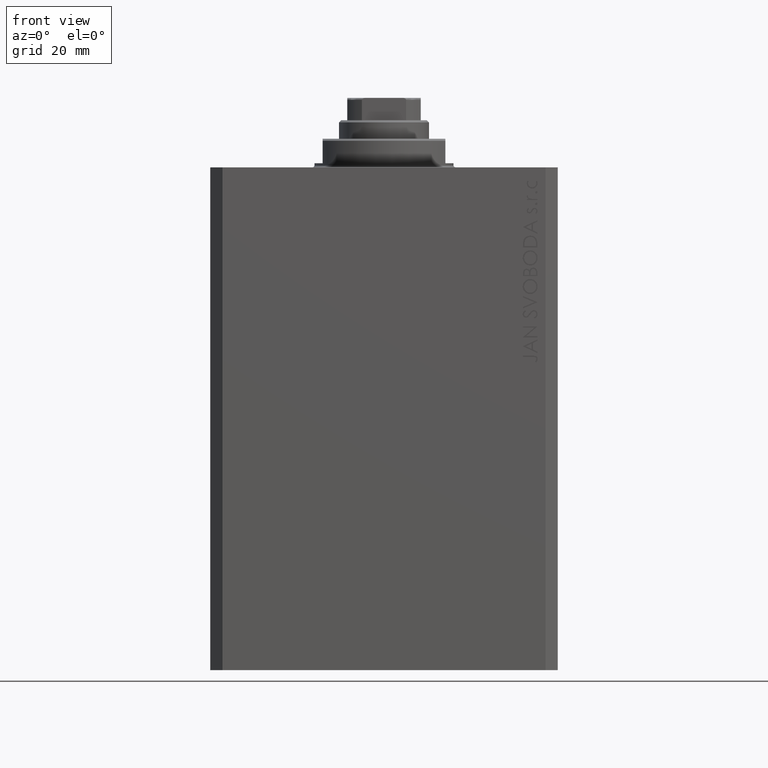
[diagram: clean part render]
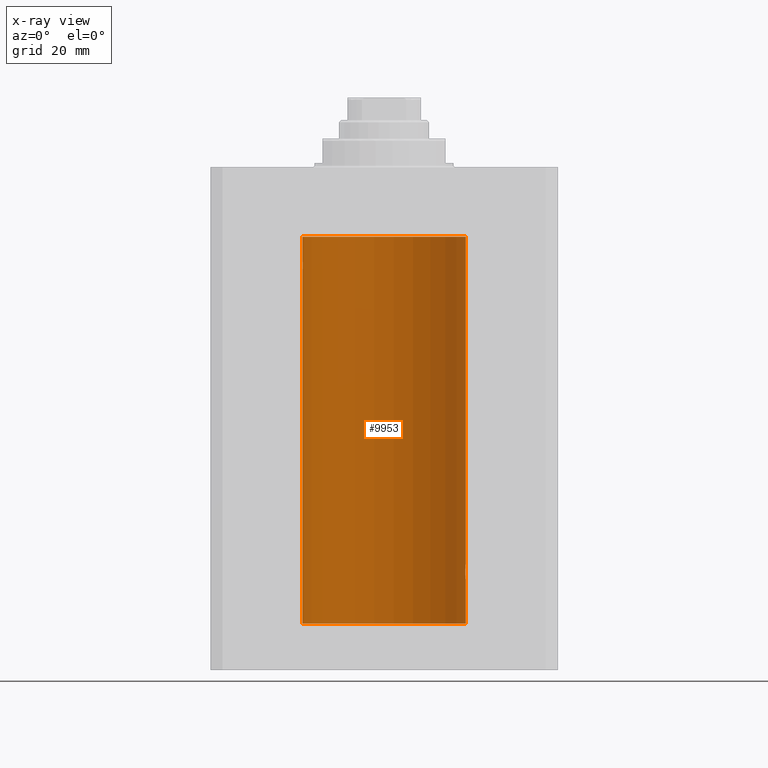
[diagram: x-ray — body ghosted, one internal face saturated and labeled with its STEP entity id]
A machine part, front view, then the same camera in x-ray: the body is ghosted and one INTERNAL B-rep face — a face not visible from any outside direction — is saturated and labeled: STEP entity #9953.
In plain terms, the highlighted cylindrical surface (partial cylindrical patch) has radius 20 mm, axis along (0, 0, 1).
Its self-contained STEP definition (entity closure, byte-faithful):
#113 = CARTESIAN_POINT ( 'NONE',  ( -19.99868965376115071, 0.2622407139811102628, -22.01298505384673732 ) ) ;
#612 = VERTEX_POINT ( 'NONE', #23503 ) ;
#788 = EDGE_CURVE ( 'NONE', #33542, #24362, #6632, .T. ) ;
#823 = B_SPLINE_CURVE_WITH_KNOTS ( 'NONE', 3,
 ( #7515, #39989, #113, #4585, #14695, #22090, #43813, #11104, #22968, #1003, #15564, #37531, #4820, #44914, #12228, #16738, #35128, #2419, #13403, #12690, #27973, #27488, #24376, #27247, #42048, #38466, #24615, #31075, #21045, #35366 ),
 .UNSPECIFIED., .F., .F.,
 ( 4, 2, 2, 2, 2, 2, 2, 2, 2, 2, 2, 2, 2, 2, 4 ),
 ( 1.233811249882840126E-19, 0.0003910512220831129202, 0.0007821024441662257319, 0.001173153666249338381, 0.001564204888332450813, 0.002346307332498675461, 0.003128409776664900326, 0.003519460998748018179, 0.003910512220831135165, 0.004301563442914253452, 0.004692614664997370871, 0.005083665887080488291, 0.005474717109163606578, 0.005865768331246723997, 0.006256819553329842284 ),
 .UNSPECIFIED. ) ;
#1003 = CARTESIAN_POINT ( 'NONE',  ( -19.93684595445884611, 1.598854313793185655, -22.77049887769366521 ) ) ;
#1052 = CARTESIAN_POINT ( 'NONE',  ( 20.00000000000000000, 0.000000000000000000, -111.5999999999999943 ) ) ;
#1324 = CARTESIAN_POINT ( 'NONE',  ( 19.98998987637478209, 0.6441982143731844745, -97.10205654639885609 ) ) ;
#1674 = DIRECTION ( 'NONE',  ( 1.000000000000000000, 0.000000000000000000, 0.000000000000000000 ) ) ;
#1685 = CIRCLE ( 'NONE', #7782, 20.00000000000000000 ) ;
#1742 = CARTESIAN_POINT ( 'NONE',  ( 19.92371056170336274, 1.748080295468898537, -100.0060386593725070 ) ) ;
#1793 = CARTESIAN_POINT ( 'NONE',  ( 20.00000000000000000, 0.1305404422160218736, -96.99999999999998579 ) ) ;
#2029 = CARTESIAN_POINT ( 'NONE',  ( 19.95655800881796083, 1.320814917468111194, -97.49239309359698780 ) ) ;
#2419 = CARTESIAN_POINT ( 'NONE',  ( -19.91909332229799290, 1.797847595792767317, -24.88596189455837759 ) ) ;
#3048 = VECTOR ( 'NONE', #46145, 1000.000000000000000 ) ;
#3799 = LINE ( 'NONE', #36976, #21428 ) ;
#4341 = AXIS2_PLACEMENT_3D ( 'NONE', #37959, #19821, #1674 ) ;
#4585 = CARTESIAN_POINT ( 'NONE',  ( -19.99370013622814568, 0.5179893069484621249, -22.06384771616670903 ) ) ;
#4820 = CARTESIAN_POINT ( 'NONE',  ( -19.89975827978156175, 1.999905101582726719, -23.73819846102561115 ) ) ;
#4869 = DIRECTION ( 'NONE',  ( -0.000000000000000000, -0.000000000000000000, 1.000000000000000000 ) ) ;
#5114 = EDGE_LOOP ( 'NONE', ( #46737, #5212, #32744, #12389, #34268, #45523, #47040, #22211, #41936 ) ) ;
#5201 = EDGE_CURVE ( 'NONE', #6409, #33542, #5326, .T. ) ;
#5212 = ORIENTED_EDGE ( 'NONE', *, *, #14396, .F. ) ;
#5326 = LINE ( 'NONE', #1052, #7532 ) ;
#6409 = VERTEX_POINT ( 'NONE', #43210 ) ;
#6632 = CIRCLE ( 'NONE', #4341, 20.00000000000000000 ) ;
#7472 = EDGE_CURVE ( 'NONE', #8645, #612, #32541, .T. ) ;
#7515 = CARTESIAN_POINT ( 'NONE',  ( -20.00000000000000000, -1.269718202421245235E-16, -22.00000000000000000 ) ) ;
#7532 = VECTOR ( 'NONE', #4869, 1000.000000000000000 ) ;
#7725 = DIRECTION ( 'NONE',  ( 1.000000000000000000, 0.000000000000000000, 0.000000000000000000 ) ) ;
#7782 = AXIS2_PLACEMENT_3D ( 'NONE', #39726, #14895, #7725 ) ;
#7870 = B_SPLINE_CURVE_WITH_KNOTS ( 'NONE', 3,
 ( #12504, #34464, #38270, #23241, #15836, #30410, #44957, #8902, #26829, #27057, #1742, #12273, #27288, #16317 ),
 .UNSPECIFIED., .F., .F.,
 ( 4, 2, 2, 2, 2, 2, 4 ),
 ( 1.911692756536875168E-18, 0.0003911418372936038769, 0.0007822836745872059107, 0.001173425511880807782, 0.001564567349174409870, 0.002346851023761584772, 0.003129134698348759892 ),
 .UNSPECIFIED. ) ;
#8645 = VERTEX_POINT ( 'NONE', #36787 ) ;
#8902 = CARTESIAN_POINT ( 'NONE',  ( 19.96307037068151757, 1.219701915132744841, -100.5904134935036751 ) ) ;
#9428 = CARTESIAN_POINT ( 'NONE',  ( 19.94332236886613074, 1.507531922383789524, -97.67909949904074551 ) ) ;
#9953 = ADVANCED_FACE ( 'NONE', ( #46196 ), #35458, .F. ) ;
#10564 = CARTESIAN_POINT ( 'NONE',  ( 20.00000000000000000, 0.000000000000000000, -111.5999999999999943 ) ) ;
#11104 = CARTESIAN_POINT ( 'NONE',  ( -19.96308513509966787, 1.219458756546270672, -22.40940266542446935 ) ) ;
#11199 = DIRECTION ( 'NONE',  ( -0.000000000000000000, -0.000000000000000000, 1.000000000000000000 ) ) ;
#11615 = CARTESIAN_POINT ( 'NONE',  ( 19.91911433329477177, 1.797615436563606561, -98.11357106075776358 ) ) ;
#12070 = DIRECTION ( 'NONE',  ( -0.000000000000000000, -0.000000000000000000, 1.000000000000000000 ) ) ;
#12228 = CARTESIAN_POINT ( 'NONE',  ( -19.90106552791689154, 1.987020435121076734, -24.26241417820002155 ) ) ;
#12273 = CARTESIAN_POINT ( 'NONE',  ( 19.90520750556430229, 1.947496194184494378, -99.52455416993456083 ) ) ;
#12389 = ORIENTED_EDGE ( 'NONE', *, *, #38140, .T. ) ;
#12504 = CARTESIAN_POINT ( 'NONE',  ( 20.00000000000000000, 1.967327733996653312E-15, -101.0000000000000000 ) ) ;
#12690 = CARTESIAN_POINT ( 'NONE',  ( -19.93679350243183990, 1.590453176650918676, -25.21960275349743696 ) ) ;
#13018 = CARTESIAN_POINT ( 'NONE',  ( 19.97511131722831479, 1.003336743019912936, -97.26498565174388489 ) ) ;
#13227 = CARTESIAN_POINT ( 'NONE',  ( 19.89974874213236333, 2.000000000000336620, -99.00000000000000000 ) ) ;
#13403 = CARTESIAN_POINT ( 'NONE',  ( -19.92471474456649716, 1.735228749583835439, -25.00297226784954674 ) ) ;
#14218 = EDGE_CURVE ( 'NONE', #32958, #24362, #19702, .T. ) ;
#14396 = EDGE_CURVE ( 'NONE', #8645, #31336, #1685, .T. ) ;
#14695 = CARTESIAN_POINT ( 'NONE',  ( -19.98996196681220638, 0.6450624715427617506, -22.10234886833925572 ) ) ;
#14895 = DIRECTION ( 'NONE',  ( 0.000000000000000000, 0.000000000000000000, 1.000000000000000000 ) ) ;
#15180 = CARTESIAN_POINT ( 'NONE',  ( 19.90980722176544049, 1.897923463361389285, -98.35574535366806970 ) ) ;
#15564 = CARTESIAN_POINT ( 'NONE',  ( -19.92373272380676497, 1.747830109444745927, -22.99354240926169624 ) ) ;
#15836 = CARTESIAN_POINT ( 'NONE',  ( 19.98995738555794688, 0.6452086089795042723, -100.8976034536016044 ) ) ;
#16317 = CARTESIAN_POINT ( 'NONE',  ( 19.89974874213236333, 2.000000000000336620, -99.00000000000000000 ) ) ;
#16738 = CARTESIAN_POINT ( 'NONE',  ( -19.90610216711450420, 1.935912154109700190, -24.51899474186111050 ) ) ;
#16839 = CARTESIAN_POINT ( 'NONE',  ( 19.98071536551674754, 0.8863972468204365240, -97.20236805399481739 ) ) ;
#17170 = AXIS2_PLACEMENT_3D ( 'NONE', #30944, #38093, #31174 ) ;
#18767 = CARTESIAN_POINT ( 'NONE',  ( 19.90611763847108762, 1.935753518394741635, -98.48042243434849752 ) ) ;
#19481 = CARTESIAN_POINT ( 'NONE',  ( 19.89974874213236689, 2.000000000000336620, -98.86948983741758923 ) ) ;
#19702 = LINE ( 'NONE', #37382, #40534 ) ;
#19821 = DIRECTION ( 'NONE',  ( 0.000000000000000000, 0.000000000000000000, 1.000000000000000000 ) ) ;
#20182 = CARTESIAN_POINT ( 'NONE',  ( 20.00000000000000000, -1.553109350199128042E-23, -97.00000000000000000 ) ) ;
#20634 = CARTESIAN_POINT ( 'NONE',  ( 20.00000000000000000, 0.000000000000000000, -17.00000000000000000 ) ) ;
#21045 = CARTESIAN_POINT ( 'NONE',  ( -19.99999999999999645, 0.1305706983324449733, -25.99999999999998934 ) ) ;
#21428 = VECTOR ( 'NONE', #11199, 1000.000000000000000 ) ;
#21540 = EDGE_CURVE ( 'NONE', #31336, #23410, #3799, .T. ) ;
#22090 = CARTESIAN_POINT ( 'NONE',  ( -19.98067755938510714, 0.8872481584516758168, -22.20278656943303375 ) ) ;
#22211 = ORIENTED_EDGE ( 'NONE', *, *, #14218, .F. ) ;
#22729 = CARTESIAN_POINT ( 'NONE',  ( -20.00000000000000000, -1.269718202421245235E-16, -22.00000000000000000 ) ) ;
#22968 = CARTESIAN_POINT ( 'NONE',  ( -19.95645382900617903, 1.322305185229311064, -22.49384229619286657 ) ) ;
#23241 = CARTESIAN_POINT ( 'NONE',  ( 19.99369727434158506, 0.5181068333511539281, -100.9361228828299630 ) ) ;
#23410 = VERTEX_POINT ( 'NONE', #42944 ) ;
#23503 = CARTESIAN_POINT ( 'NONE',  ( 20.00000000000000000, 1.967327733996653312E-15, -101.0000000000000000 ) ) ;
#24362 = VERTEX_POINT ( 'NONE', #38011 ) ;
#24376 = CARTESIAN_POINT ( 'NONE',  ( -19.96304379627741454, 1.220099331833899736, -25.59007067689674386 ) ) ;
#24615 = CARTESIAN_POINT ( 'NONE',  ( -19.99365919015135518, 0.5196544277756711683, -25.93573148867292133 ) ) ;
#25707 = CARTESIAN_POINT ( 'NONE',  ( -20.00000000000000000, 2.449293598294706513E-15, -111.5999999999999943 ) ) ;
#25936 = CARTESIAN_POINT ( 'NONE',  ( 19.89974874213236333, 2.000000000000336620, -99.00000000000000000 ) ) ;
#26829 = CARTESIAN_POINT ( 'NONE',  ( 19.95643710845398999, 1.322557776536547047, -100.5059384114668717 ) ) ;
#27057 = CARTESIAN_POINT ( 'NONE',  ( 19.93682487288204541, 1.599118048130817149, -100.2291703518122148 ) ) ;
#27247 = CARTESIAN_POINT ( 'NONE',  ( -19.97510079925438475, 1.003547732426807171, -25.73489454601984150 ) ) ;
#27288 = CARTESIAN_POINT ( 'NONE',  ( 19.89974874213236689, 2.000000000000336620, -99.26114132155828429 ) ) ;
#27488 = CARTESIAN_POINT ( 'NONE',  ( -19.95654117037011588, 1.321069663197671273, -25.50738641543989615 ) ) ;
#27973 = CARTESIAN_POINT ( 'NONE',  ( -19.94330239452387232, 1.507796451871729504, -25.32060165083834136 ) ) ;
#30410 = CARTESIAN_POINT ( 'NONE',  ( 19.98066923111604964, 0.8874387315505228857, -100.7971214522023899 ) ) ;
#30944 = CARTESIAN_POINT ( 'NONE',  ( 0.000000000000000000, 0.000000000000000000, -111.5999999999999943 ) ) ;
#31075 = CARTESIAN_POINT ( 'NONE',  ( -19.99867931558985745, 0.2631998640366461362, -25.98691292011447374 ) ) ;
#31174 = DIRECTION ( 'NONE',  ( 1.000000000000000000, 0.000000000000000000, 0.000000000000000000 ) ) ;
#31336 = VERTEX_POINT ( 'NONE', #25707 ) ;
#32541 = LINE ( 'NONE', #10564, #3048 ) ;
#32744 = ORIENTED_EDGE ( 'NONE', *, *, #7472, .T. ) ;
#32958 = VERTEX_POINT ( 'NONE', #22729 ) ;
#33542 = VERTEX_POINT ( 'NONE', #20634 ) ;
#34045 = CARTESIAN_POINT ( 'NONE',  ( 19.99366205580918887, 0.5195372307044503479, -97.06423906555805559 ) ) ;
#34268 = ORIENTED_EDGE ( 'NONE', *, *, #39815, .T. ) ;
#34464 = CARTESIAN_POINT ( 'NONE',  ( 20.00000000000000000, 0.1322642052205942886, -101.0000000000000426 ) ) ;
#34482 = VERTEX_POINT ( 'NONE', #13227 ) ;
#35128 = CARTESIAN_POINT ( 'NONE',  ( -19.90978941500366872, 1.898109641280506521, -24.64371130639850804 ) ) ;
#35366 = CARTESIAN_POINT ( 'NONE',  ( -20.00000000000000000, 2.449293582768784389E-15, -25.99999999999999645 ) ) ;
#35458 = CYLINDRICAL_SURFACE ( 'NONE', #17170, 20.00000000000000000 ) ;
#36787 = CARTESIAN_POINT ( 'NONE',  ( 20.00000000000000000, 0.000000000000000000, -111.5999999999999943 ) ) ;
#36976 = CARTESIAN_POINT ( 'NONE',  ( -20.00000000000000000, 2.449293598294706513E-15, -111.5999999999999943 ) ) ;
#37382 = CARTESIAN_POINT ( 'NONE',  ( -20.00000000000000000, 2.449293598294706513E-15, -111.5999999999999943 ) ) ;
#37531 = CARTESIAN_POINT ( 'NONE',  ( -19.90522393307484705, 1.947330458682957177, -23.47486091545001941 ) ) ;
#37959 = CARTESIAN_POINT ( 'NONE',  ( 0.000000000000000000, 0.000000000000000000, -17.00000000000000000 ) ) ;
#38011 = CARTESIAN_POINT ( 'NONE',  ( -20.00000000000000000, 2.449293598294706513E-15, -17.00000000000000000 ) ) ;
#38083 = CARTESIAN_POINT ( 'NONE',  ( 19.96305842179988588, 1.219858681717333138, -97.40974712539565417 ) ) ;
#38093 = DIRECTION ( 'NONE',  ( -0.000000000000000000, -0.000000000000000000, 1.000000000000000000 ) ) ;
#38140 = EDGE_CURVE ( 'NONE', #612, #34482, #7870, .T. ) ;
#38270 = CARTESIAN_POINT ( 'NONE',  ( 19.99868904672146641, 0.2623009746877876802, -100.9870089850981429 ) ) ;
#38466 = CARTESIAN_POINT ( 'NONE',  ( -19.98998539619404013, 0.6443418861413118259, -25.89789687358865322 ) ) ;
#39726 = CARTESIAN_POINT ( 'NONE',  ( 0.000000000000000000, 0.000000000000000000, -111.5999999999999943 ) ) ;
#39815 = EDGE_CURVE ( 'NONE', #34482, #6409, #43631, .T. ) ;
#39989 = CARTESIAN_POINT ( 'NONE',  ( -19.99999999999999645, 0.1322335637814733289, -21.99999999999999645 ) ) ;
#40534 = VECTOR ( 'NONE', #12070, 1000.000000000000000 ) ;
#40727 = CARTESIAN_POINT ( 'NONE',  ( 19.92473605353366040, 1.734984354167257159, -97.99660905888588047 ) ) ;
#41541 = EDGE_CURVE ( 'NONE', #32958, #23410, #823, .T. ) ;
#41936 = ORIENTED_EDGE ( 'NONE', *, *, #41541, .T. ) ;
#42048 = CARTESIAN_POINT ( 'NONE',  ( -19.98070694681040038, 0.8865903856744316025, -25.79753901127162763 ) ) ;
#42944 = CARTESIAN_POINT ( 'NONE',  ( -20.00000000000000000, 2.449293582768784389E-15, -25.99999999999999645 ) ) ;
#43210 = CARTESIAN_POINT ( 'NONE',  ( 20.00000000000000000, -1.553109350199128042E-23, -97.00000000000000000 ) ) ;
#43631 = B_SPLINE_CURVE_WITH_KNOTS ( 'NONE', 3,
 ( #25936, #19481, #43842, #18767, #15180, #11615, #40727, #45486, #9428, #2029, #38083, #13018, #16839, #1324, #34045, #45955, #1793, #20182 ),
 .UNSPECIFIED., .F., .F.,
 ( 4, 2, 2, 2, 2, 2, 2, 2, 4 ),
 ( 0.003129134698348759892, 0.003520095305221480463, 0.003911055912094201469, 0.004302016518966922040, 0.004692977125839642612, 0.005083937732712363183, 0.005474898339585083755, 0.005865858946457804327, 0.006256819553330524898 ),
 .UNSPECIFIED. ) ;
#43813 = CARTESIAN_POINT ( 'NONE',  ( -19.97517568592526160, 1.002099838626314909, -22.26423634872104884 ) ) ;
#43842 = CARTESIAN_POINT ( 'NONE',  ( 19.90107458412648711, 1.986930174329755161, -98.73692013941791856 ) ) ;
#44914 = CARTESIAN_POINT ( 'NONE',  ( -19.89974399317116394, 2.000047251570890250, -24.12981181290706445 ) ) ;
#44957 = CARTESIAN_POINT ( 'NONE',  ( 19.97516523393783316, 1.002309963754524524, -100.7356447155611079 ) ) ;
#45486 = CARTESIAN_POINT ( 'NONE',  ( 19.93681418096177183, 1.590194273034202688, -97.78006300821549246 ) ) ;
#45523 = ORIENTED_EDGE ( 'NONE', *, *, #5201, .T. ) ;
#45955 = CARTESIAN_POINT ( 'NONE',  ( 19.99867993937906618, 0.2631387813862826053, -97.01308095003095389 ) ) ;
#46145 = DIRECTION ( 'NONE',  ( -0.000000000000000000, -0.000000000000000000, 1.000000000000000000 ) ) ;
#46196 = FACE_OUTER_BOUND ( 'NONE', #5114, .T. ) ;
#46737 = ORIENTED_EDGE ( 'NONE', *, *, #21540, .F. ) ;
#47040 = ORIENTED_EDGE ( 'NONE', *, *, #788, .T. ) ;